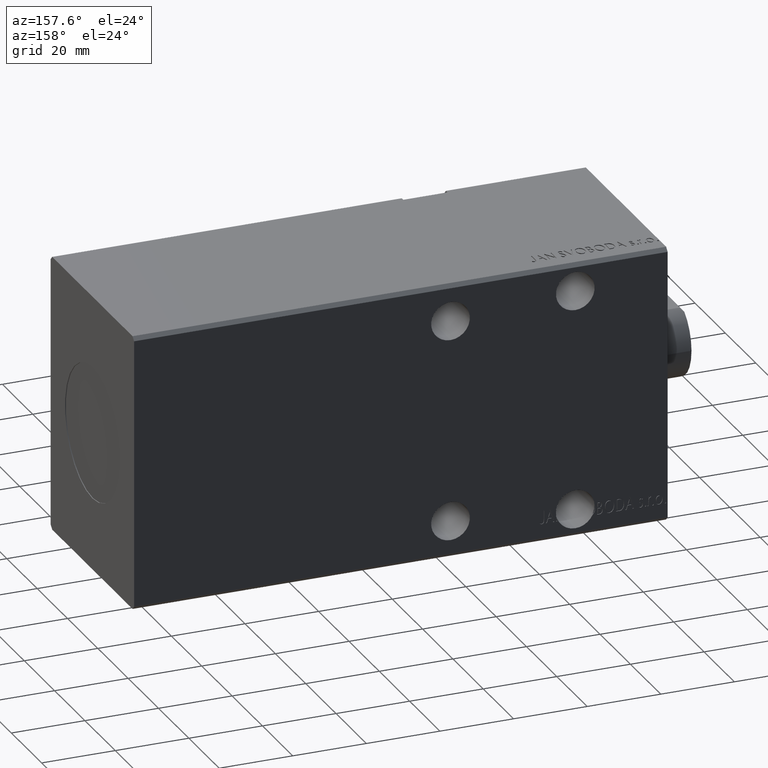
[diagram: clean part render]
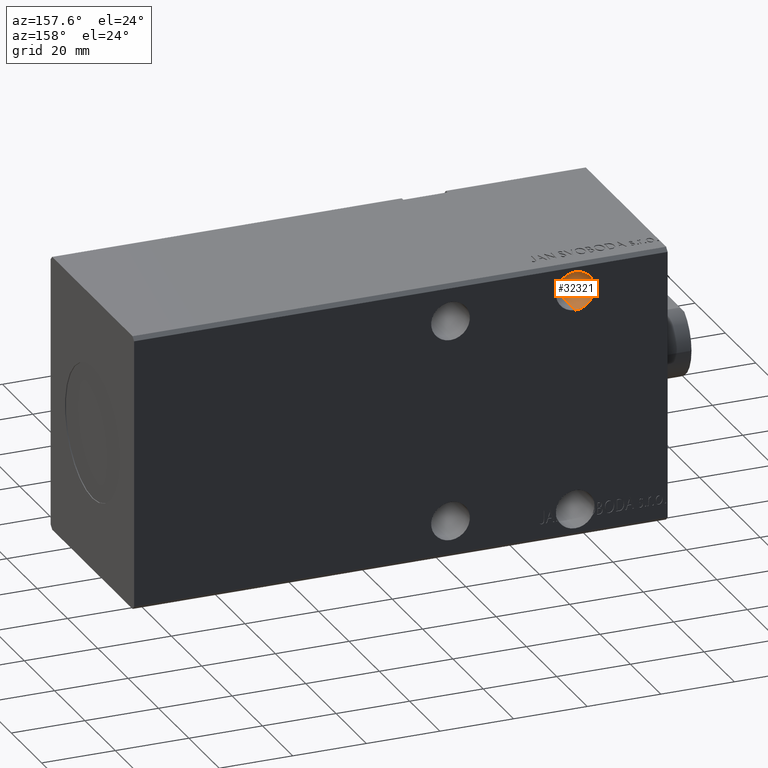
[diagram: same view with one face highlighted and labeled with its STEP entity id]
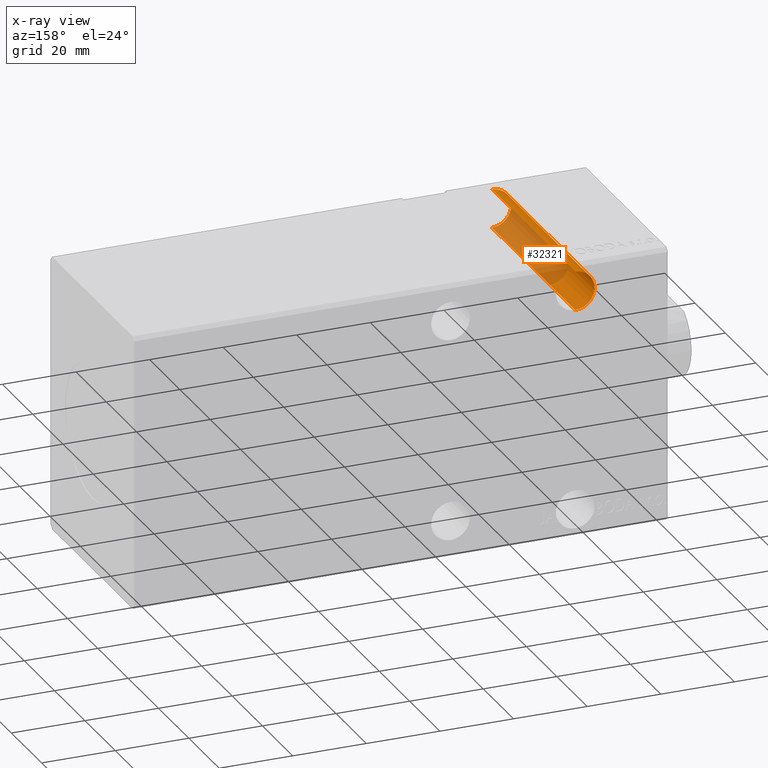
[diagram: x-ray of the same camera — body ghosted, the highlighted face saturated]
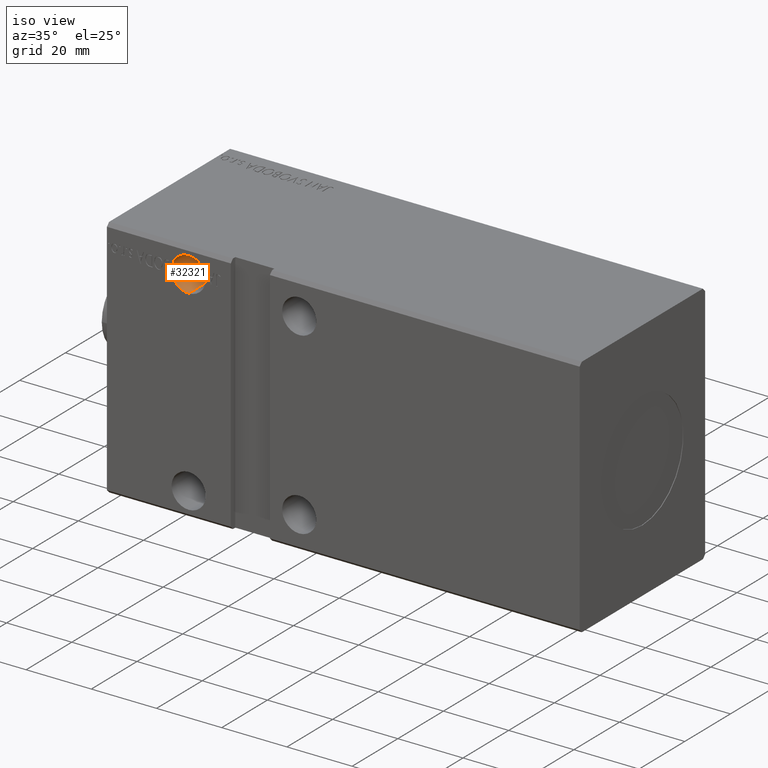
[diagram: same view with one face highlighted and labeled with its STEP entity id]
A machine part, auxiliary view. The second image highlights one B-rep face of the part: STEP entity #32321.
The next image is the same camera in x-ray: the body ghosted, the highlighted face saturated — about 53% of this face is hidden behind the body in this view.
A second angle (iso view) of the same face is appended — the face is thin or edge-on in the first view.
In plain terms, the highlighted cylindrical surface (edge-blend (fillet) strip) has radius 5.25 mm, axis along (-0, -1, -0).
Its self-contained STEP definition (entity closure, byte-faithful):
#819 = EDGE_CURVE ( 'NONE', #16616, #8726, #5851, .T. ) ;
#1233 = EDGE_CURVE ( 'NONE', #11934, #30081, #29551, .T. ) ;
#1314 = EDGE_LOOP ( 'NONE', ( #24055, #14051, #36452, #10888, #16819, #3489, #1580, #24928 ) ) ;
#1580 = ORIENTED_EDGE ( 'NONE', *, *, #31031, .F. ) ;
#1660 = DIRECTION ( 'NONE',  ( -0.000000000000000000, -1.000000000000000000, -5.507058653894626469E-17 ) ) ;
#1688 = AXIS2_PLACEMENT_3D ( 'NONE', #7638, #1660, #7833 ) ;
#2065 = CYLINDRICAL_SURFACE ( 'NONE', #1688, 5.249999999999997335 ) ;
#2241 = CARTESIAN_POINT ( 'NONE',  ( 19.84213487702729850, -27.30000000000001137, 30.03216669055488097 ) ) ;
#2648 = DIRECTION ( 'NONE',  ( 4.945004689199032525E-13, 1.000000000000000000, -6.377830073553607484E-15 ) ) ;
#3255 = VERTEX_POINT ( 'NONE', #26618 ) ;
#3296 = CARTESIAN_POINT ( 'NONE',  ( 25.09203633362805519, -27.50000000000000355, 35.24999999999997868 ) ) ;
#3477 = CARTESIAN_POINT ( 'NONE',  ( 19.84213487702729850, -27.50000000000000355, 30.03216669055488097 ) ) ;
#3489 = ORIENTED_EDGE ( 'NONE', *, *, #13255, .F. ) ;
#3962 = CARTESIAN_POINT ( 'NONE',  ( 20.38783076300684627, -27.50000000000000355, 32.33086892581636107 ) ) ;
#5687 = DIRECTION ( 'NONE',  ( -0.000000000000000000, 1.000000000000000000, 4.752667057470704875E-17 ) ) ;
#5851 = LINE ( 'NONE', #17683, #8797 ) ;
#5939 = AXIS2_PLACEMENT_3D ( 'NONE', #26895, #5687, #38261 ) ;
#7370 = AXIS2_PLACEMENT_3D ( 'NONE', #22494, #37287, #22307 ) ;
#7638 = CARTESIAN_POINT ( 'NONE',  ( 25.09203633362805519, 62.50000000000002842, 29.99999999999998224 ) ) ;
#7833 = DIRECTION ( 'NONE',  ( 0.000000000000000000, 0.000000000000000000, -1.000000000000000000 ) ) ;
#8726 = VERTEX_POINT ( 'NONE', #19846 ) ;
#8797 = VECTOR ( 'NONE', #14672, 1000.000000000000000 ) ;
#10044 = AXIS2_PLACEMENT_3D ( 'NONE', #38668, #35281, #11292 ) ;
#10048 = FACE_OUTER_BOUND ( 'NONE', #1314, .T. ) ;
#10888 = ORIENTED_EDGE ( 'NONE', *, *, #1233, .F. ) ;
#11292 = DIRECTION ( 'NONE',  ( 0.000000000000000000, 0.000000000000000000, 1.000000000000000000 ) ) ;
#11711 = LINE ( 'NONE', #14537, #19021 ) ;
#11934 = VERTEX_POINT ( 'NONE', #17880 ) ;
#12900 = AXIS2_PLACEMENT_3D ( 'NONE', #20648, #2648, #36017 ) ;
#13255 = EDGE_CURVE ( 'NONE', #30549, #3255, #39187, .T. ) ;
#14051 = ORIENTED_EDGE ( 'NONE', *, *, #38843, .T. ) ;
#14537 = CARTESIAN_POINT ( 'NONE',  ( 25.09203633362805519, 62.50000000000002842, 35.24999999999998579 ) ) ;
#14672 = DIRECTION ( 'NONE',  ( -0.000000000000000000, -1.000000000000000000, -5.507058653894626469E-17 ) ) ;
#15017 = DIRECTION ( 'NONE',  ( 0.000000000000000000, 1.000000000000000000, 0.000000000000000000 ) ) ;
#16616 = VERTEX_POINT ( 'NONE', #30929 ) ;
#16751 = VECTOR ( 'NONE', #24138, 1000.000000000000000 ) ;
#16819 = ORIENTED_EDGE ( 'NONE', *, *, #17926, .F. ) ;
#17161 = EDGE_CURVE ( 'NONE', #16616, #34520, #23176, .T. ) ;
#17683 = CARTESIAN_POINT ( 'NONE',  ( 25.09203633362805519, 62.50000000000002842, 24.74999999999998224 ) ) ;
#17880 = CARTESIAN_POINT ( 'NONE',  ( 20.38783076300684627, -27.29999999999914806, 32.33086892581636107 ) ) ;
#17926 = EDGE_CURVE ( 'NONE', #3255, #11934, #39144, .T. ) ;
#18184 = CARTESIAN_POINT ( 'NONE',  ( 25.09203633362805519, 27.50000000000001066, 35.24999999999997868 ) ) ;
#18271 = VECTOR ( 'NONE', #15017, 1000.000000000000000 ) ;
#19021 = VECTOR ( 'NONE', #20346, 1000.000000000000000 ) ;
#19846 = CARTESIAN_POINT ( 'NONE',  ( 25.09203633362805519, -27.50000000000000355, 24.74999999999997868 ) ) ;
#20346 = DIRECTION ( 'NONE',  ( -0.000000000000000000, -1.000000000000000000, -5.507058653894626469E-17 ) ) ;
#20648 = CARTESIAN_POINT ( 'NONE',  ( 25.09203633362805519, -27.30000000000148930, 29.99999999999997868 ) ) ;
#20808 = CIRCLE ( 'NONE', #7370, 5.249999999999997335 ) ;
#22307 = DIRECTION ( 'NONE',  ( 0.000000000000000000, 0.000000000000000000, 1.000000000000000000 ) ) ;
#22494 = CARTESIAN_POINT ( 'NONE',  ( 25.09203633362805519, -27.50000000000000355, 29.99999999999997868 ) ) ;
#23176 = CIRCLE ( 'NONE', #5939, 5.249999999999997335 ) ;
#24055 = ORIENTED_EDGE ( 'NONE', *, *, #17161, .T. ) ;
#24138 = DIRECTION ( 'NONE',  ( -0.000000000000000000, -1.000000000000000000, -0.000000000000000000 ) ) ;
#24928 = ORIENTED_EDGE ( 'NONE', *, *, #819, .F. ) ;
#26472 = EDGE_CURVE ( 'NONE', #30081, #35135, #34318, .T. ) ;
#26618 = CARTESIAN_POINT ( 'NONE',  ( 19.84213487702729850, -27.29999999999889582, 30.03216669055488097 ) ) ;
#26895 = CARTESIAN_POINT ( 'NONE',  ( 25.09203633362805519, 27.50000000000001066, 29.99999999999997868 ) ) ;
#29551 = LINE ( 'NONE', #35537, #16751 ) ;
#30081 = VERTEX_POINT ( 'NONE', #3962 ) ;
#30549 = VERTEX_POINT ( 'NONE', #3477 ) ;
#30929 = CARTESIAN_POINT ( 'NONE',  ( 25.09203633362805519, 27.50000000000001066, 24.74999999999997868 ) ) ;
#31031 = EDGE_CURVE ( 'NONE', #8726, #30549, #20808, .T. ) ;
#32321 = ADVANCED_FACE ( 'NONE', ( #10048 ), #2065, .F. ) ;
#34318 = CIRCLE ( 'NONE', #10044, 5.249999999999997335 ) ;
#34520 = VERTEX_POINT ( 'NONE', #18184 ) ;
#35135 = VERTEX_POINT ( 'NONE', #3296 ) ;
#35281 = DIRECTION ( 'NONE',  ( -0.000000000000000000, 1.000000000000000000, 5.507058653894625853E-17 ) ) ;
#35537 = CARTESIAN_POINT ( 'NONE',  ( 20.38783076300662600, -27.30000000000001137, 32.33086892581646765 ) ) ;
#36017 = DIRECTION ( 'NONE',  ( 1.000000000000000000, -4.943135847735818958E-13, 0.000000000000000000 ) ) ;
#36452 = ORIENTED_EDGE ( 'NONE', *, *, #26472, .F. ) ;
#37287 = DIRECTION ( 'NONE',  ( -0.000000000000000000, 1.000000000000000000, 5.507058653894625853E-17 ) ) ;
#38261 = DIRECTION ( 'NONE',  ( 0.000000000000000000, 0.000000000000000000, -1.000000000000000000 ) ) ;
#38668 = CARTESIAN_POINT ( 'NONE',  ( 25.09203633362805519, -27.50000000000000355, 29.99999999999997868 ) ) ;
#38843 = EDGE_CURVE ( 'NONE', #34520, #35135, #11711, .T. ) ;
#39144 = CIRCLE ( 'NONE', #12900, 5.249999999999997335 ) ;
#39187 = LINE ( 'NONE', #2241, #18271 ) ;